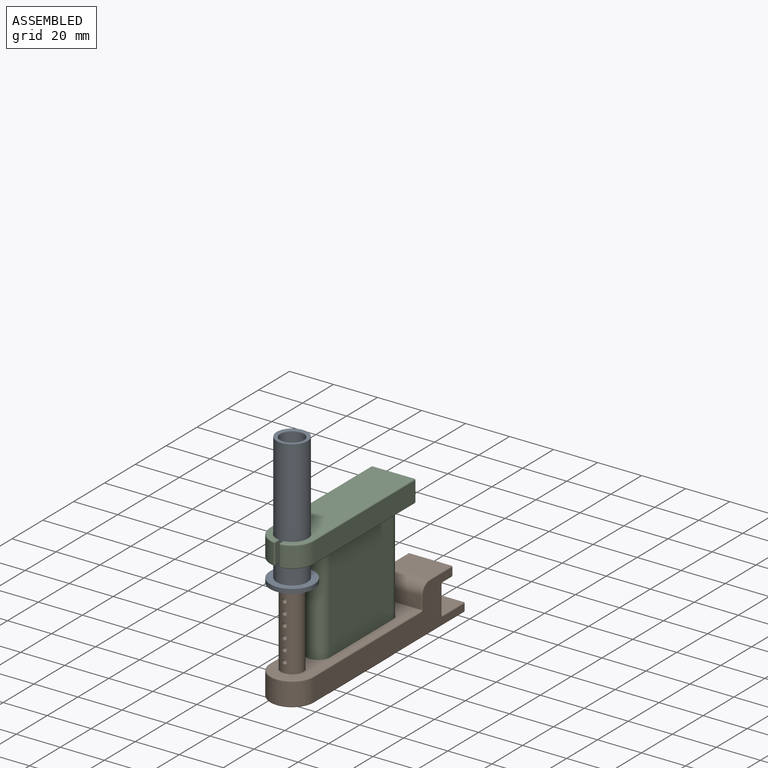
[diagram: assembled view]
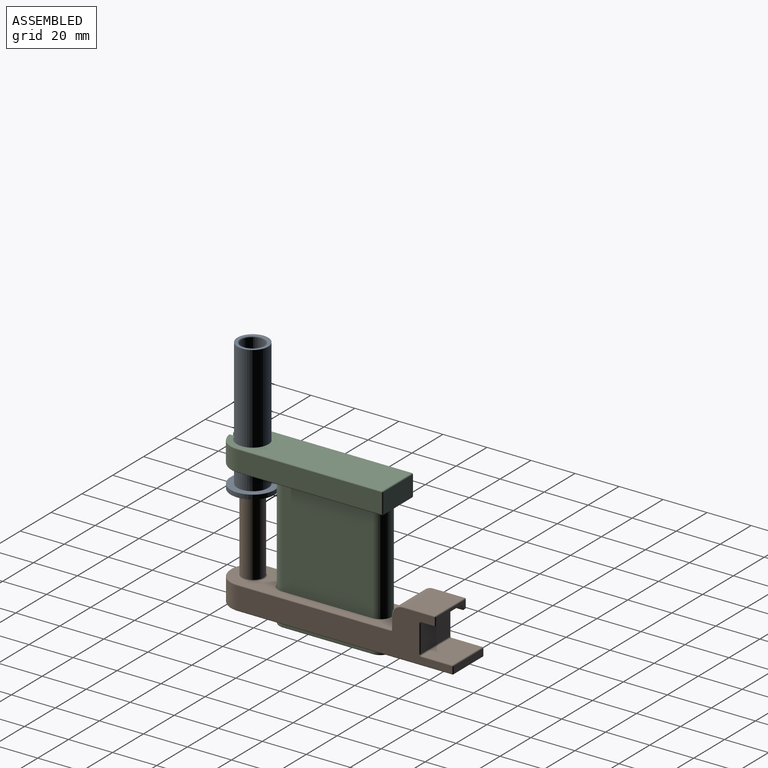
[diagram: assembled view, second angle]
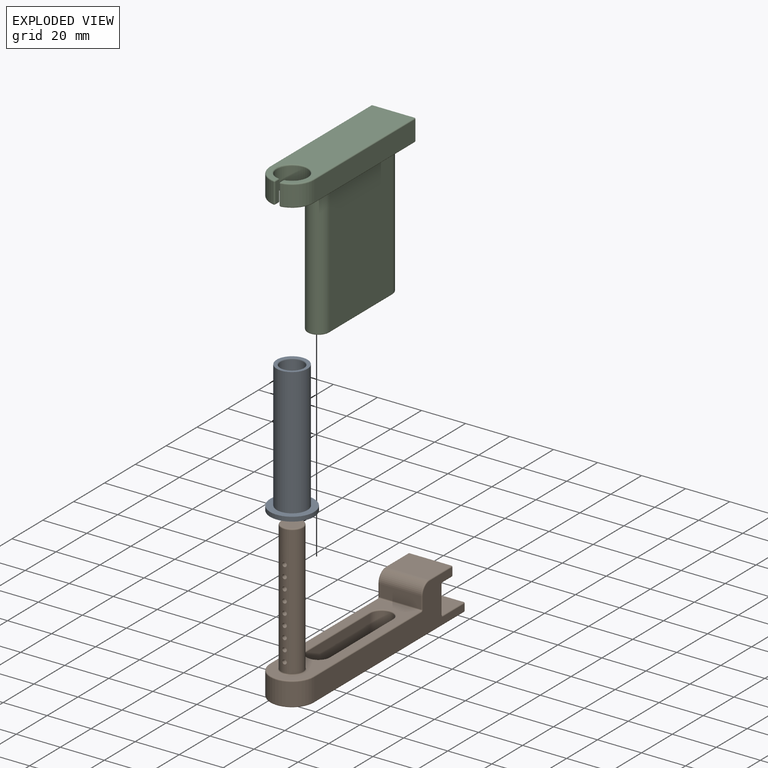
[diagram: exploded view]
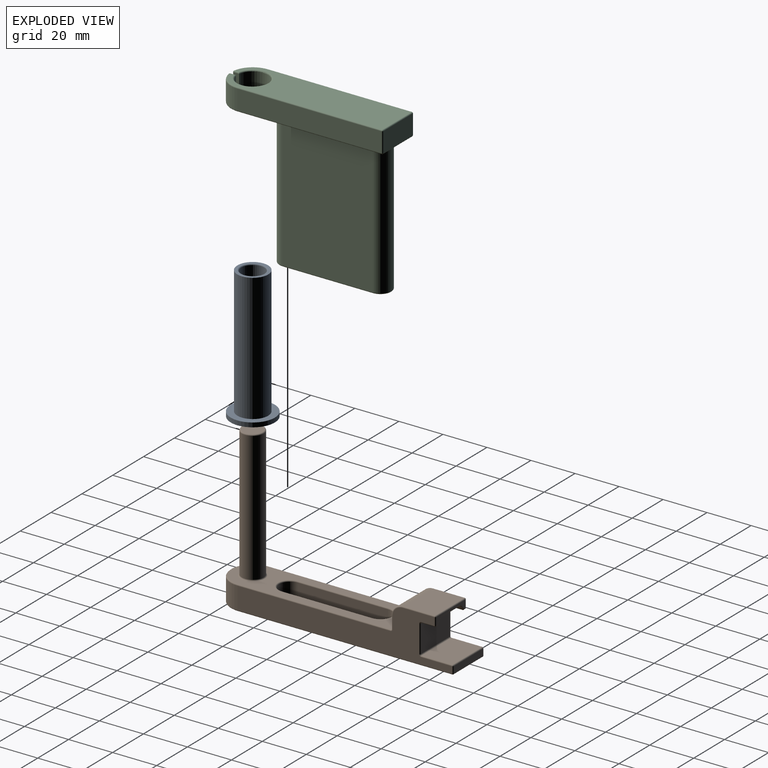
[diagram: exploded view, second angle]
ASSEMBLY  parts=3 mates=2
PART A: 8 faces, bbox 20x20x60 mm
  f0: cylinder r=5.25mm len=59mm, axis (0,0,-1), area 1946.2mm2, adj f6,f7
  f1: cylinder r=10mm len=20mm, axis (0,0,-1), area 125.7mm2, adj f2,f3
  f2: plane 20x20mm, normal (0,0,1), area 160.2mm2, adj f1,f5
  f3: plane 20x20mm, normal (0,0,-1), area 210.3mm2, adj f1,f7
  f4: plane 14x14mm, normal (0,0,1), area 50.1mm2, adj f5,f6
  f5: cylinder r=7mm len=58mm, axis (0,0,-1), area 2551mm2, adj f2,f4
  f6: torus R=5.75mm, axis (0,0,1), area 26.8mm2, adj f0,f4
  f7: torus R=5.75mm, axis (0,0,1), area 26.8mm2, adj f0,f3
PART B: 102 faces, bbox 21.6x108.8x71 mm
  f0: plane 97.5x21mm, normal (-1,0,0), area 1022.8mm2, adj f10,f43,f48,f61,f68,f69,f74,f75
  f1: plane 97.5x21mm, normal (1,0,0), area 1022.8mm2, adj f10,f40,f45,f50,f51,f53,f54,f56
  f2: plane 6x1.15mm, normal (0,0,-1), area 6.9mm2, adj f5,f52,f58,f64
  f3: plane 6x1.15mm, normal (0,0,-1), area 6.9mm2, adj f6,f76,f84,f85
  f4: plane 12x6mm, normal (0,0,-1), area 72mm2, adj f5,f6,f63,f77
  f5: cylinder r=10mm len=6mm, axis (0,-1,0), area 20.7mm2, adj f2,f4,f57,f71
  f6: cylinder r=10mm len=6mm, axis (0,-1,0), area 20.7mm2, adj f3,f4,f70,f81
  f7: plane 19x15mm, normal (0,1,0), area 272.9mm2, adj f51,f52,f57,f62,f63,f70,f75,f76
  f8: cylinder r=5mm len=59mm, axis (0,0,-1), area 1825.2mm2, adj f22,f24,f26,f28,f30,f32,f34,f36
  f9: plane 19x14.5mm, normal (0,0,1), area 275.5mm2, adj f73,f82,f83,f100
  f10: cylinder r=10mm len=20mm, axis (0,0,-1), area 314.2mm2, adj f0,f1,f41,f60
  f11: plane 19x3mm, normal (0,1,0), area 57mm2, adj f44,f45,f48,f49
  f12: plane 107x19mm, normal (0,0,-1), area 1436.5mm2, adj f40,f41,f43,f44,f89,f90,f91,f92
  f13: plane 19x5.5mm, normal (0,-1,0), area 104.5mm2, adj f66,f67,f79,f100
  f14: plane 79x19mm, normal (0,0,1), area 809.5mm2, adj f54,f60,f67,f68,f93,f94,f95,f96
  f15: plane 19x14mm, normal (0,0,1), area 266mm2, adj f49,f50,f61,f62
  f16: plane 9x9mm, normal (0,0,1), area 63.6mm2, adj f98
  f17: cylinder r=5.1mm len=10.2mm, axis (0,0,1), area 160.2mm2, adj f18,f20,f90,f93
  f18: plane 41x10mm, normal (1,0,0), area 410mm2, adj f17,f19,f89,f94
  f19: cylinder r=5.1mm len=10.2mm, axis (0,0,1), area 160.2mm2, adj f18,f20,f91,f96
  f20: plane 41x10mm, normal (-1,0,0), area 410mm2, adj f17,f19,f92,f95
  f21: plane 2x2mm, normal (0,-1,0), area 3.1mm2, adj f22
  f22: cylinder r=1mm len=3mm, axis (0,1,0), area 18.5mm2, adj f8,f21
  f23: plane 2x2mm, normal (0,-1,0), area 3.1mm2, adj f24
  f24: cylinder r=1mm len=3mm, axis (0,1,0), area 18.5mm2, adj f8,f23
  f25: plane 2x2mm, normal (0,-1,0), area 3.1mm2, adj f26
  f26: cylinder r=1mm len=3mm, axis (0,1,0), area 18.5mm2, adj f8,f25
  f27: plane 2x2mm, normal (0,-1,0), area 3.1mm2, adj f28
  f28: cylinder r=1mm len=3mm, axis (0,1,0), area 18.5mm2, adj f8,f27
  f29: plane 2x2mm, normal (0,-1,0), area 3.1mm2, adj f30
  f30: cylinder r=1mm len=3mm, axis (0,1,0), area 18.5mm2, adj f8,f29
  f31: plane 2x2mm, normal (0,-1,0), area 3.1mm2, adj f32
  f32: cylinder r=1mm len=3mm, axis (0,1,0), area 18.5mm2, adj f8,f31
  f33: plane 2x2mm, normal (0,-1,0), area 3.1mm2, adj f34
  f34: cylinder r=1mm len=3mm, axis (0,1,0), area 18.5mm2, adj f8,f33
  f35: plane 2x2mm, normal (0,-1,0), area 3.1mm2, adj f36
  f36: cylinder r=1mm len=3mm, axis (0,1,0), area 18.5mm2, adj f8,f35
  f37: plane 2x2mm, normal (0,-1,0), area 3.1mm2, adj f38
  f38: cylinder r=1mm len=3mm, axis (0,1,0), area 18.5mm2, adj f8,f37
  f39: plane 19x3.5mm, normal (0,1,0), area 28.9mm2, adj f64,f71,f72,f77,f81,f82,f85,f88
  f40: cylinder r=0.5mm len=97.5mm, axis (0,1,0), area 76.6mm2, adj f1,f12,f41,f42
  f41: torus R=9.5mm, axis (0,0,1), area 24.2mm2, adj f10,f12,f40,f43
  f42: sphere r=0.5mm, area 0.4mm2, adj f40,f44,f45
  f43: cylinder r=0.5mm len=97.5mm, axis (0,-1,0), area 76.6mm2, adj f0,f12,f41,f46
  f44: cylinder r=0.5mm len=19mm, axis (-1,0,0), area 14.9mm2, adj f11,f12,f42,f46
  f45: cylinder r=0.5mm len=3mm, axis (0,0,-1), area 2.4mm2, adj f1,f11,f42,f47
  f46: sphere r=0.5mm, area 0.4mm2, adj f43,f44,f48
  f47: sphere r=0.5mm, area 0.4mm2, adj f45,f49,f50
  f48: cylinder r=0.5mm len=3mm, axis (0,0,-1), area 2.4mm2, adj f0,f11,f46,f55
  f49: cylinder r=0.5mm len=19mm, axis (1,0,0), area 14.9mm2, adj f11,f15,f47,f55
  f50: cylinder r=0.5mm len=14mm, axis (0,1,0), area 11mm2, adj f1,f15,f47,f56
  f51: cylinder r=0.5mm len=12.5mm, axis (0,0,-1), area 9.8mm2, adj f1,f7,f53,f56
  f52: cylinder r=0.5mm len=1.42mm, axis (1,0,0), area 1mm2, adj f2,f7,f53,f57
  f53: torus R=1mm, axis (1,0,0), area 0.8mm2, adj f1,f51,f52,f58
  f54: cylinder r=0.5mm len=69.5mm, axis (0,-1,0), area 54.6mm2, adj f1,f14,f59,f60
  f55: sphere r=0.5mm, area 0.4mm2, adj f48,f49,f61
  f56: torus R=1mm, axis (1,0,0), area 0.8mm2, adj f1,f50,f51,f62
  f57: torus R=9.5mm, axis (0,-1,0), area 2.7mm2, adj f5,f7,f52,f63
  f58: cylinder r=0.5mm len=6mm, axis (0,1,0), area 4.7mm2, adj f1,f2,f53,f65
  f59: torus R=1mm, axis (1,0,0), area 0.8mm2, adj f1,f54,f66,f67
  f60: torus R=9.5mm, axis (0,0,1), area 24.2mm2, adj f10,f14,f54,f68
  f61: cylinder r=0.5mm len=14mm, axis (0,1,0), area 11mm2, adj f0,f15,f55,f69
  f62: cylinder r=0.5mm len=19mm, axis (1,0,0), area 14.9mm2, adj f7,f15,f56,f69
  f63: cylinder r=0.5mm len=12mm, axis (-1,0,0), area 9.3mm2, adj f4,f7,f57,f70
  f64: cylinder r=0.5mm len=1.15mm, axis (1,0,0), area 0.8mm2, adj f2,f39,f65,f71
  f65: sphere r=0.5mm, area 0.4mm2, adj f58,f64,f72
  f66: cylinder r=0.5mm len=5.5mm, axis (0,0,1), area 4.3mm2, adj f1,f13,f59,f101
  f67: cylinder r=0.5mm len=19mm, axis (-1,0,0), area 14.9mm2, adj f13,f14,f59,f74
  f68: cylinder r=0.5mm len=69.5mm, axis (0,1,0), area 54.6mm2, adj f0,f14,f60,f74
  f69: torus R=1mm, axis (-1,0,0), area 0.8mm2, adj f0,f61,f62,f75
  f70: torus R=9.5mm, axis (0,-1,0), area 2.7mm2, adj f6,f7,f63,f76
  f71: torus R=10.5mm, axis (0,1,0), area 2.7mm2, adj f5,f39,f64,f77
  f72: cylinder r=0.5mm len=3.5mm, axis (0,0,-1), area 2.7mm2, adj f1,f39,f65,f78
  f73: cylinder r=0.5mm len=14.5mm, axis (0,-1,0), area 11.4mm2, adj f1,f9,f78,f101
  f74: torus R=1mm, axis (-1,0,0), area 0.8mm2, adj f0,f67,f68,f79
  f75: cylinder r=0.5mm len=12.5mm, axis (0,0,-1), area 9.8mm2, adj f0,f7,f69,f80
  f76: cylinder r=0.5mm len=1.42mm, axis (1,0,0), area 1mm2, adj f3,f7,f70,f80
  f77: cylinder r=0.5mm len=12.33mm, axis (-1,0,0), area 9.5mm2, adj f4,f39,f71,f81
  f78: sphere r=0.5mm, area 0.4mm2, adj f72,f73,f82
  f79: cylinder r=0.5mm len=5.5mm, axis (0,0,1), area 4.3mm2, adj f0,f13,f74,f99
  f80: torus R=1mm, axis (-1,0,0), area 0.8mm2, adj f0,f75,f76,f84
  f81: torus R=10.5mm, axis (0,1,0), area 2.7mm2, adj f6,f39,f77,f85
  f82: cylinder r=0.5mm len=19mm, axis (1,0,0), area 14.9mm2, adj f9,f39,f78,f86
  f83: cylinder r=0.5mm len=14.5mm, axis (0,1,0), area 11.4mm2, adj f0,f9,f86,f99
  f84: cylinder r=0.5mm len=6mm, axis (0,1,0), area 4.7mm2, adj f0,f3,f80,f87
  f85: cylinder r=0.5mm len=1.15mm, axis (1,0,0), area 0.8mm2, adj f3,f39,f81,f87
  f86: sphere r=0.5mm, area 0.4mm2, adj f82,f83,f88
  f87: sphere r=0.5mm, area 0.4mm2, adj f84,f85,f88
  f88: cylinder r=0.5mm len=3.5mm, axis (0,0,-1), area 2.7mm2, adj f0,f39,f86,f87
  f89: cylinder r=0.5mm len=41mm, axis (0,1,0), area 32.2mm2, adj f12,f18,f90,f91
  f90: torus R=5.6mm, axis (0,0,1), area 13mm2, adj f12,f17,f89,f92
  f91: torus R=5.6mm, axis (0,0,1), area 13mm2, adj f12,f19,f89,f92
  f92: cylinder r=0.5mm len=41mm, axis (0,-1,0), area 32.2mm2, adj f12,f20,f90,f91
  f93: torus R=5.6mm, axis (0,0,1), area 13mm2, adj f14,f17,f94,f95
  f94: cylinder r=0.5mm len=41mm, axis (0,1,0), area 32.2mm2, adj f14,f18,f93,f96
  f95: cylinder r=0.5mm len=41mm, axis (0,-1,0), area 32.2mm2, adj f14,f20,f93,f96
  f96: torus R=5.6mm, axis (0,0,1), area 13mm2, adj f14,f19,f94,f95
  f97: torus R=5.5mm, axis (0,0,1), area 25.6mm2, adj f8,f14
  f98: torus R=4.5mm, axis (0,0,1), area 23.8mm2, adj f8,f16
  f99: torus R=4.5mm, axis (-1,0,0), area 5.9mm2, adj f0,f79,f83,f100
  f100: cylinder r=5mm len=19mm, axis (1,0,0), area 149.2mm2, adj f9,f13,f99,f101
  f101: torus R=4.5mm, axis (1,0,0), area 5.9mm2, adj f1,f66,f73,f100
PART C: 51 faces, bbox 21.6x76.7x71 mm
  f0: cylinder r=10mm len=9.87mm, axis (0,0,1), area 127.1mm2, adj f12,f15,f18,f21
  f1: cylinder r=7mm len=14mm, axis (0,0,1), area 377.8mm2, adj f13,f14,f23,f33
  f2: plane 74.88x19mm, normal (0,0,-1), area 657.5mm2, adj f21,f27,f28,f33,f36,f37,f41,f42
  f3: plane 74.88x19mm, normal (0,0,1), area 1203.5mm2, adj f15,f17,f19,f23,f24,f25,f29,f30
  f4: cylinder r=5mm len=60mm, axis (0,0,-1), area 942.5mm2, adj f5,f6,f46,f49
  f5: plane 60x41mm, normal (-1,0,0), area 2460mm2, adj f4,f7,f44,f50
  f6: plane 60x41mm, normal (1,0,0), area 2460mm2, adj f4,f7,f45,f47
  f7: cylinder r=5mm len=60mm, axis (0,0,-1), area 942.5mm2, adj f5,f6,f43,f48
  f8: plane 50x9mm, normal (0,0,-1), area 432.6mm2, adj f47,f48,f49,f50
  f9: cylinder r=10mm len=9.87mm, axis (0,0,1), area 127.1mm2, adj f10,f30,f38,f42
  f10: plane 65.5x9mm, normal (1,0,0), area 589.5mm2, adj f9,f24,f35,f41
  f11: plane 19x9mm, normal (0,1,0), area 171mm2, adj f25,f26,f35,f36
  f12: plane 65.5x9mm, normal (-1,0,0), area 589.5mm2, adj f0,f17,f26,f27
  f13: plane 9x2.45mm, normal (-1,0,0), area 22.1mm2, adj f1,f29,f37,f38
  f14: plane 9x2.45mm, normal (1,0,0), area 22.1mm2, adj f1,f18,f19,f28
  f15: torus R=9.5mm, axis (0,0,1), area 10.9mm2, adj f0,f3,f16,f17
  f16: sphere r=0.5mm, area 0.4mm2, adj f15,f18,f19
  f17: cylinder r=0.5mm len=65.5mm, axis (0,-1,0), area 51.4mm2, adj f3,f12,f15,f20
  f18: cylinder r=0.5mm len=9mm, axis (0,0,1), area 7.8mm2, adj f0,f14,f16,f22
  f19: cylinder r=0.5mm len=2.45mm, axis (0,1,0), area 1.8mm2, adj f3,f14,f16,f23
  f20: sphere r=0.5mm, area 0.4mm2, adj f17,f25,f26
  f21: torus R=9.5mm, axis (0,0,1), area 10.9mm2, adj f0,f2,f22,f27
  f22: sphere r=0.5mm, area 0.4mm2, adj f18,f21,f28
  f23: torus R=7.5mm, axis (0,0,1), area 33.6mm2, adj f1,f3,f19,f29
  f24: cylinder r=0.5mm len=65.5mm, axis (0,1,0), area 51.4mm2, adj f3,f10,f30,f31
  f25: cylinder r=0.5mm len=19mm, axis (-1,0,0), area 14.9mm2, adj f3,f11,f20,f31
  f26: cylinder r=0.5mm len=9mm, axis (0,0,-1), area 7.1mm2, adj f11,f12,f20,f32
  f27: cylinder r=0.5mm len=65.5mm, axis (0,1,0), area 51.4mm2, adj f2,f12,f21,f32
  f28: cylinder r=0.5mm len=2.45mm, axis (0,1,0), area 1.8mm2, adj f2,f14,f22,f33
  f29: cylinder r=0.5mm len=2.45mm, axis (0,-1,0), area 1.8mm2, adj f3,f13,f23,f34
  f30: torus R=9.5mm, axis (0,0,1), area 10.9mm2, adj f3,f9,f24,f34
  f31: sphere r=0.5mm, area 0.4mm2, adj f24,f25,f35
  f32: sphere r=0.5mm, area 0.4mm2, adj f26,f27,f36
  f33: torus R=7.5mm, axis (0,0,1), area 33.6mm2, adj f1,f2,f28,f37
  f34: sphere r=0.5mm, area 0.4mm2, adj f29,f30,f38
  f35: cylinder r=0.5mm len=9mm, axis (0,0,1), area 7.1mm2, adj f10,f11,f31,f39
  f36: cylinder r=0.5mm len=19mm, axis (1,0,0), area 14.9mm2, adj f2,f11,f32,f39
  f37: cylinder r=0.5mm len=2.45mm, axis (0,-1,0), area 1.8mm2, adj f2,f13,f33,f40
  f38: cylinder r=0.5mm len=9mm, axis (0,0,1), area 7.8mm2, adj f9,f13,f34,f40
  f39: sphere r=0.5mm, area 0.4mm2, adj f35,f36,f41
  f40: sphere r=0.5mm, area 0.4mm2, adj f37,f38,f42
  f41: cylinder r=0.5mm len=65.5mm, axis (0,-1,0), area 51.4mm2, adj f2,f10,f39,f42
  f42: torus R=9.5mm, axis (0,0,1), area 10.9mm2, adj f2,f9,f40,f41
  f43: torus R=5.5mm, axis (0,0,1), area 12.8mm2, adj f2,f7,f44,f45
  f44: cylinder r=0.5mm len=41mm, axis (0,1,0), area 32.2mm2, adj f2,f5,f43,f46
  f45: cylinder r=0.5mm len=41mm, axis (0,-1,0), area 32.2mm2, adj f2,f6,f43,f46
  f46: torus R=5.5mm, axis (0,0,1), area 12.8mm2, adj f2,f4,f44,f45
  f47: cylinder r=0.5mm len=41mm, axis (0,1,0), area 32.2mm2, adj f6,f8,f48,f49
  f48: torus R=4.5mm, axis (0,0,1), area 11.9mm2, adj f7,f8,f47,f50
  f49: torus R=4.5mm, axis (0,0,1), area 11.9mm2, adj f4,f8,f47,f50
  f50: cylinder r=0.5mm len=41mm, axis (0,-1,0), area 32.2mm2, adj f5,f8,f48,f49
PLACE A rot(axis=(0,0,-1),0deg) t=(-127.03,-15.24,85.75)mm
PLACE B rot(axis=(0,0,-1),0deg) t=(-127.03,-15.24,50.02)mm
PLACE C t=(-127.03,-15.24,45.87)mm fixed
MATE slider B.f8 <-> C.f0  axis (0,0,-1) through (-127.03,-85.24,91.02)mm
MATE slider B.f8 <-> A.f0  axis (0,0,-1) through (-127.03,-85.24,91.02)mm
